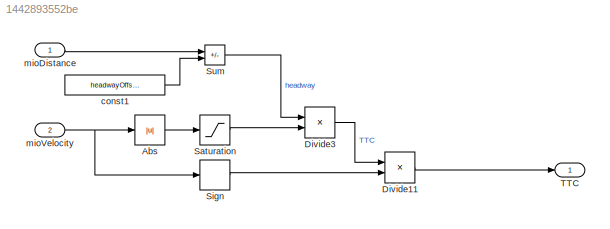
MODEL slx_1442893552be
KIND model
CONFIG AbsTol = auto
CONFIG EnableMultiTasking = on
CONFIG FixedStep = auto
CONFIG MaxStep = auto
CONFIG MinStep = auto
CONFIG RelTol = 1e-3
CONFIG SampleTimeConstraint = Unconstrained
CONFIG SolverName = FixedStepDiscrete
CONFIG StartTime = 0.0
CONFIG StopTime = 10.0
BLOCK [Abs] Abs
  SaturateOnIntegerOverflow = off
BLOCK [Product] Divide11
  Inputs = **
BLOCK [Product] Divide3
  Inputs = */
BLOCK [Saturate] Saturation
  LowerLimit = 0.01
  UpperLimit = 100
BLOCK [Signum] Sign
BLOCK [Sum] Sum
  IconShape = rectangular
  Inputs = +-
BLOCK [Outport] TTC
  OutDataTypeStr = TTC_DType
  OutMax = TTC_Max
  OutMin = TTC_Min
  PortDimensions = TTC_Dimensions
  SampleTime = Ts
  SamplingMode = Sample based
  SignalName = TTC
  SignalType = real
  Unit = s
  VectorParamsAs1DForOutWhenUnconnected = off
BLOCK [Constant] const1
  SampleTime = -1
  Value = headwayOffset
BLOCK [Inport] mioDistance
  OutDataTypeStr = Distance_DType
  OutMax = Distance_Max
  OutMin = Distance_Min
  PortDimensions = Distance_Dimensions
  SampleTime = Ts
  SamplingMode = Sample based
  SignalType = real
  Unit = m
BLOCK [Inport] mioVelocity
  OutDataTypeStr = Velocity_DType
  OutMax = Velocity_Max
  OutMin = Velocity_Min
  Port = 2
  PortDimensions = Velocity_Dimensions
  SampleTime = Ts
  SamplingMode = Sample based
  SignalType = real
  Unit = m/s
LINE Abs:1 -> Saturation:1
LINE Divide11:1 -> TTC:1
LINE Divide3:1 -> Divide11:1
LINE Saturation:1 -> Divide3:2
LINE Sign:1 -> Divide11:2
LINE Sum:1 -> Divide3:1
LINE const1:1 -> Sum:2
LINE mioDistance:1 -> Sum:1
NET mioVelocity:1 -> Abs:1, Sign:1
note: NET lines group one-source signal fan-out (src -> all destinations, sorted); 1:1 wires keep LINE
